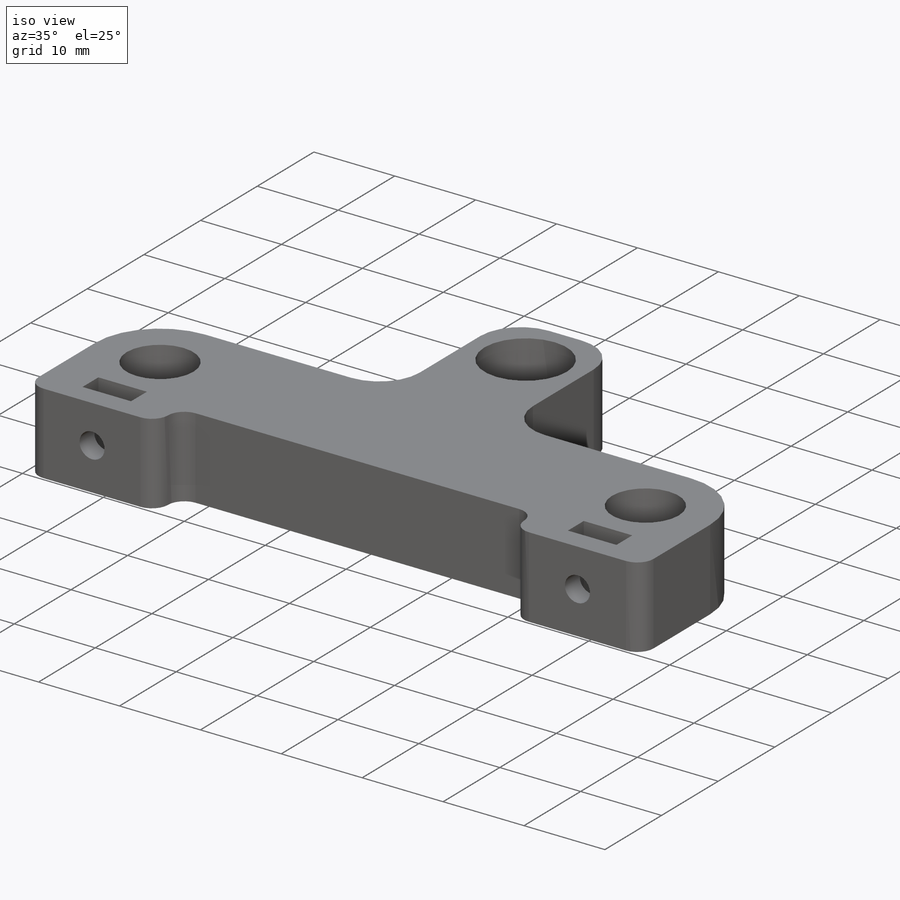
[diagram: iso view]
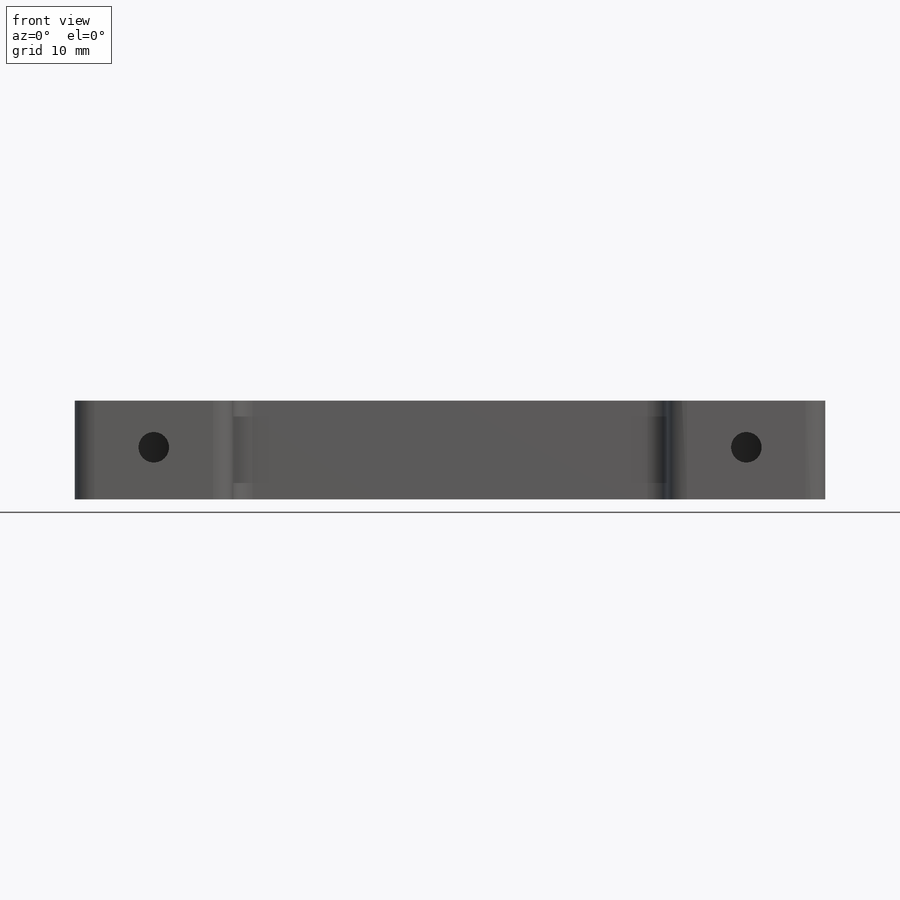
[diagram: front view]
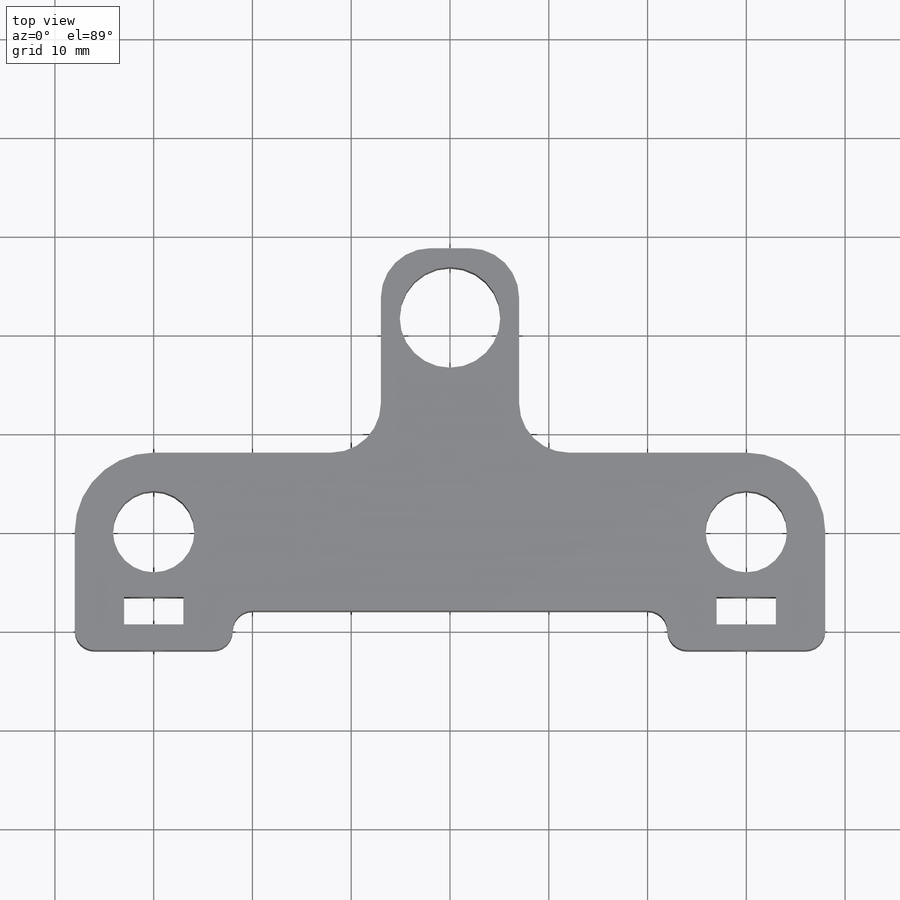
[diagram: top view]
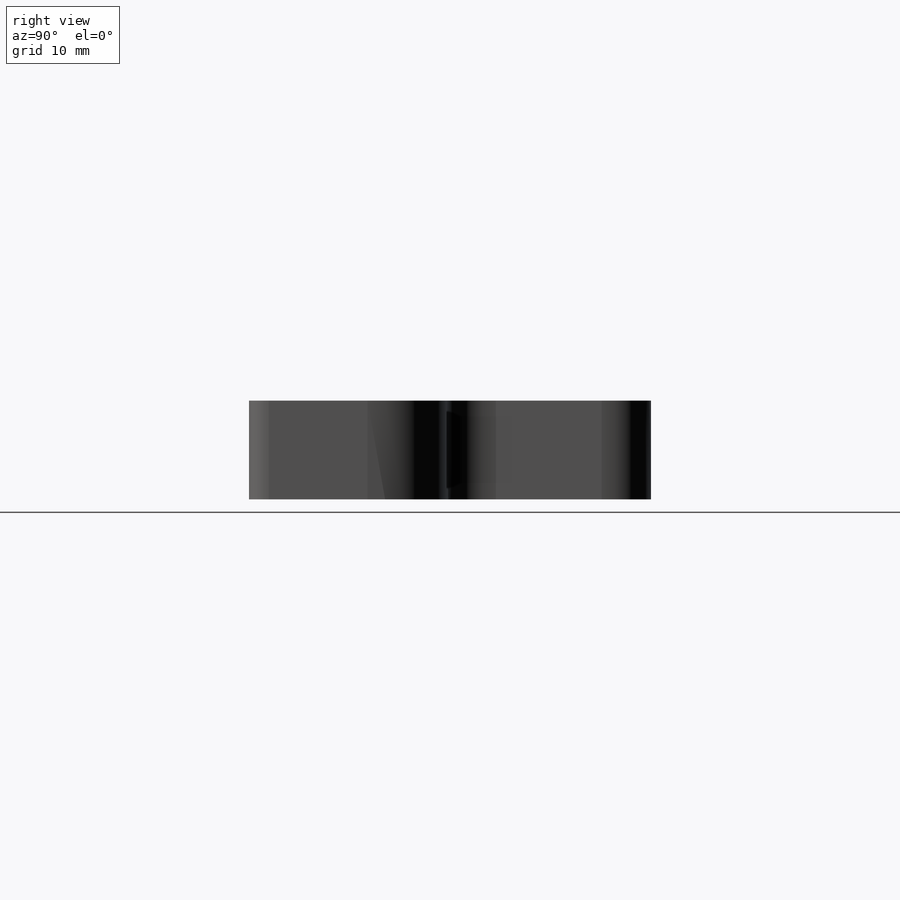
[diagram: right view]
SOLIDWORKS PART (.sldprt)
format: sldprt  version: not decoded by parser v0  size: 247,808 bytes
history: native  units: mm
features: sketch x3, fillet x3, cut_extrude x2, material x1, extrude x1, mirror x1 (+13 scaffold rows collapsed)
feature tree (24):
  scaffold x13  (default folders/planes/origin — collapsed)
  material  "Material <not specified>"
  sketch  "Sketch1"  dims[D1=8.25mm D10=10.2mm D2=60.0mm D3=30.0mm D4=8.0mm D5=8.0mm D6=8.0mm D7=8.0mm D8=16.0mm D9=4.0mm D11=21.7mm D12=14.0mm D13=7.0mm D14=7.0mm]
  extrude  "Boss-Extrude1"  Depth=10mm
  sketch  "Sketch2"  dims[D1=2.8mm D2=6.0mm D3=8.0mm]
  cut_extrude  "Cut-Extrude1"  Depth=10mm
  sketch  "Sketch3"  dims[D1=3.1mm]
  cut_extrude  "Cut-Extrude2"  Depth=10mm
  mirror  "Mirror1"
  fillet  "Fillet1"  Radius=8mm
  fillet  "Fillet2"  Radius=2mm
  fillet  "Fillet4"  Radius=5mm
decode coverage: 9 of 10 modeling features carry decoded parameters
note: suppression state not decoded; provenance and decode notes live in map.json
